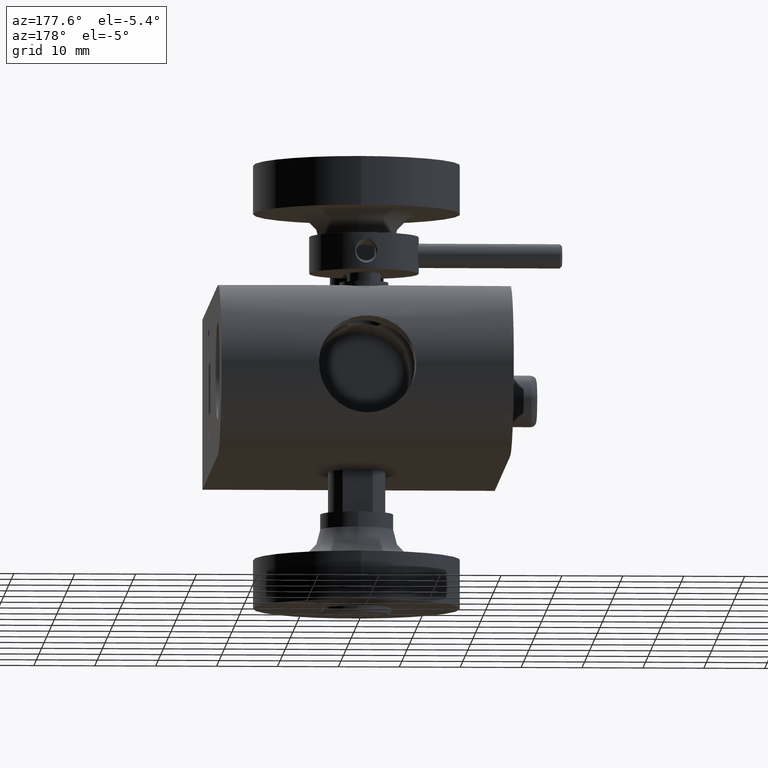
[diagram: clean part render]
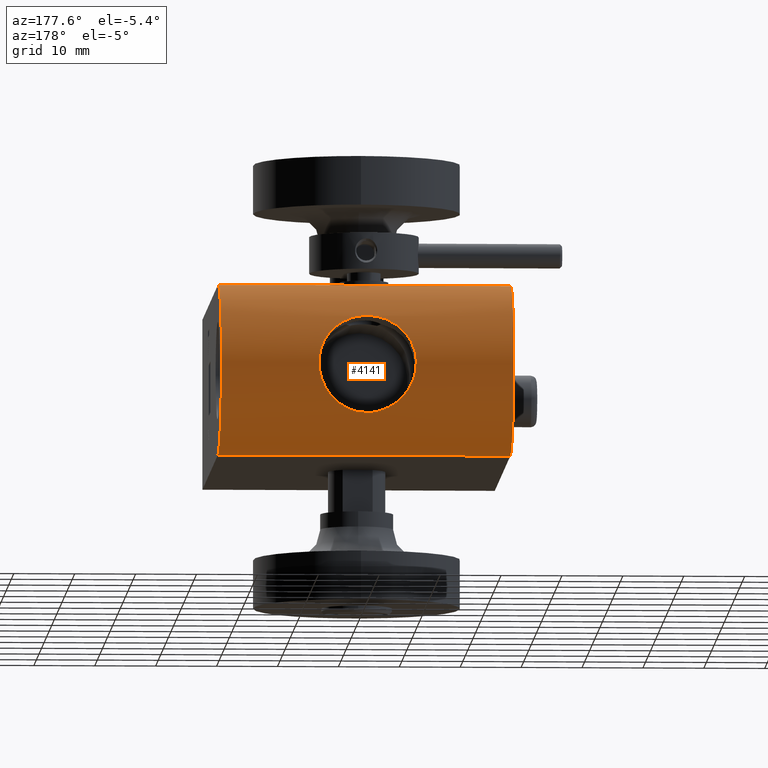
[diagram: same view with one face highlighted and labeled with its STEP entity id]
A machine part, auxiliary view. The second image highlights one B-rep face of the part: STEP entity #4141.
In plain terms, the highlighted cylindrical surface (partial cylindrical patch) has radius 14 mm, axis along (-1, 0, 0).
Its self-contained STEP definition (entity closure, byte-faithful):
#9 = CARTESIAN_POINT ( 'NONE',  ( -1.315228994278563768, 63.13531062139124117, 13.78656092639999109 ) ) ;
#59 = FACE_OUTER_BOUND ( 'NONE', #693, .T. ) ;
#79 = CARTESIAN_POINT ( 'NONE',  ( -2.638759947029245989, 72.47897627757603800, 7.570610446144321770 ) ) ;
#92 = CARTESIAN_POINT ( 'NONE',  ( -3.190061943320558147, 62.41922032144078969, 13.89467053544480990 ) ) ;
#107 = DIRECTION ( 'NONE',  ( 0.000000000000000000, 0.000000000000000000, 1.000000000000000000 ) ) ;
#138 = CARTESIAN_POINT ( 'NONE',  ( 24.00000000000000000, 60.70000000000000284, 13.99999999999999822 ) ) ;
#205 = CARTESIAN_POINT ( 'NONE',  ( 3.475238859139290870, 61.98806669925669155, 13.94138993986110542 ) ) ;
#210 = VERTEX_POINT ( 'NONE', #2813 ) ;
#265 = CARTESIAN_POINT ( 'NONE',  ( 1.375813530567649767, 72.26834024371287057, -7.885290432641760994 ) ) ;
#291 = CARTESIAN_POINT ( 'NONE',  ( -7.562777677641387086, 74.45375558165503094, -2.660295839653317618 ) ) ;
#339 = CARTESIAN_POINT ( 'NONE',  ( -5.306336268282032087, 73.35112403287396887, 6.009018835462801356 ) ) ;
#361 = EDGE_LOOP ( 'NONE', ( #2661 ) ) ;
#362 = DIRECTION ( 'NONE',  ( -1.000000000000000000, 0.000000000000000000, 0.000000000000000000 ) ) ;
#367 = CARTESIAN_POINT ( 'NONE',  ( -2.579095086834629846, 72.46576653865754736, -7.590945448088208813 ) ) ;
#387 = CARTESIAN_POINT ( 'NONE',  ( 3.551925738961246637, 72.72368893723927386, 7.172935414953692579 ) ) ;
#433 = VERTEX_POINT ( 'NONE', #652 ) ;
#438 = CARTESIAN_POINT ( 'NONE',  ( 2.090216680029844731, 72.36614579887428533, 7.740608111071021646 ) ) ;
#464 = CARTESIAN_POINT ( 'NONE',  ( 7.926935223221118321, 74.65835791080426986, 1.111916745920430660 ) ) ;
#500 = ORIENTED_EDGE ( 'NONE', *, *, #1523, .T. ) ;
#514 = CARTESIAN_POINT ( 'NONE',  ( 3.774065615057194290, 61.36889053274513373, 13.98748661467156928 ) ) ;
#519 = DIRECTION ( 'NONE',  ( -1.000000000000000000, 0.000000000000000000, 0.000000000000000000 ) ) ;
#533 = CARTESIAN_POINT ( 'NONE',  ( 24.00000000000000000, 60.70000000000000284, -14.00000000000000178 ) ) ;
#568 = CARTESIAN_POINT ( 'NONE',  ( -1.315228994278563768, 63.13531062139124117, 13.78656092639999109 ) ) ;
#588 = VERTEX_POINT ( 'NONE', #9 ) ;
#638 = LINE ( 'NONE', #2224, #3439 ) ;
#649 = CARTESIAN_POINT ( 'NONE',  ( -3.542229549773953323, 72.72082532302275126, -7.177726282944028036 ) ) ;
#652 = CARTESIAN_POINT ( 'NONE',  ( 3.938273733503041996, 60.70000000000000284, 13.99999999999999822 ) ) ;
#664 = EDGE_CURVE ( 'NONE', #210, #3551, #4093, .T. ) ;
#693 = EDGE_LOOP ( 'NONE', ( #1456, #4489, #3648, #5033, #3567, #500, #1077, #4438, #3185, #2870 ) ) ;
#706 = CARTESIAN_POINT ( 'NONE',  ( -5.251234183627897067, 73.33100336079252202, -6.040734319447999212 ) ) ;
#732 = CARTESIAN_POINT ( 'NONE',  ( 4.285616307323049767, 72.96082456090861967, -6.760082533082305112 ) ) ;
#740 = CARTESIAN_POINT ( 'NONE',  ( -1.430892739030114935, 63.73531069248475234, 13.66700000000321147 ) ) ;
#755 = CARTESIAN_POINT ( 'NONE',  ( -4.853052937495022867, 73.17072204257551959, -6.365045856498598553 ) ) ;
#781 = CARTESIAN_POINT ( 'NONE',  ( -2.139293463597402578, 72.37529982436920761, 7.726845560265292789 ) ) ;
#820 = CARTESIAN_POINT ( 'NONE',  ( -3.290438723831640377, 62.28091319061947218, 13.91122088644786281 ) ) ;
#830 = CARTESIAN_POINT ( 'NONE',  ( 4.008775927856346399, 72.86647868712039156, 6.927979105224827627 ) ) ;
#837 = CARTESIAN_POINT ( 'NONE',  ( 1.315228994278492713, 63.13531062139129801, 13.78656092639998043 ) ) ;
#866 = VERTEX_POINT ( 'NONE', #1420 ) ;
#868 = CARTESIAN_POINT ( 'NONE',  ( -3.473997165026830203, 61.99019990850624851, 13.94118851690588201 ) ) ;
#876 = CARTESIAN_POINT ( 'NONE',  ( 4.655092302246336189, 73.09477438729589949, 6.511196563398756076 ) ) ;
#912 = VECTOR ( 'NONE', #2866, 1000.000000000000000 ) ;
#936 = AXIS2_PLACEMENT_3D ( 'NONE', #4945, #1410, #2609 ) ;
#957 = B_SPLINE_CURVE_WITH_KNOTS ( 'NONE', 3,
 ( #1754, #4879, #4059, #2882, #2567, #2172, #3749, #3695, #4107, #205, #1779, #514, #3312, #3362 ),
 .UNSPECIFIED., .F., .F.,
 ( 4, 2, 2, 2, 2, 2, 4 ),
 ( 3.099625970156314540E-14, 0.001028376005875155080, 0.001542564008797234817, 0.002056752011719314988, 0.002570940014641411205, 0.003085128017563506554, 0.004113504023407698121 ),
 .UNSPECIFIED. ) ;
#1034 = CARTESIAN_POINT ( 'NONE',  ( -7.884740563987262973, 74.63438561269444449, -1.379020319179069531 ) ) ;
#1064 = CARTESIAN_POINT ( 'NONE',  ( -5.443780475400558316, 73.41251200910313912, -5.867789466993320602 ) ) ;
#1077 = ORIENTED_EDGE ( 'NONE', *, *, #2223, .T. ) ;
#1091 = CARTESIAN_POINT ( 'NONE',  ( -7.998460582776938388, 74.69912034115733945, -0.3094999171637923818 ) ) ;
#1121 = CARTESIAN_POINT ( 'NONE',  ( 3.377020555461148099, 72.67290650555003140, -7.256997650767647023 ) ) ;
#1147 = CARTESIAN_POINT ( 'NONE',  ( -7.588867561526579486, 74.46815477823008678, 2.585640454884033268 ) ) ;
#1172 = CARTESIAN_POINT ( 'NONE',  ( 24.00000000000000000, 60.70000000000000284, -8.673617379884041389E-16 ) ) ;
#1187 = LINE ( 'NONE', #4336, #2802 ) ;
#1192 = CARTESIAN_POINT ( 'NONE',  ( 7.589403814143906857, 74.46845799386308329, -2.583786651014191804 ) ) ;
#1214 = CARTESIAN_POINT ( 'NONE',  ( 7.256979664534068952, 74.28883000211722276, 3.377073778761595868 ) ) ;
#1230 = CARTESIAN_POINT ( 'NONE',  ( -3.877390386153397372, 61.04253612524981065, 14.00000000000000000 ) ) ;
#1363 = VERTEX_POINT ( 'NONE', #4492 ) ;
#1381 = VERTEX_POINT ( 'NONE', #533 ) ;
#1410 = DIRECTION ( 'NONE',  ( 1.000000000000000000, -0.000000000000000000, -0.000000000000000000 ) ) ;
#1420 = CARTESIAN_POINT ( 'NONE',  ( 1.315228994278492713, 63.13531062139129801, 13.78656092639998043 ) ) ;
#1456 = ORIENTED_EDGE ( 'NONE', *, *, #3171, .T. ) ;
#1476 = CARTESIAN_POINT ( 'NONE',  ( 0.8880275837515027026, 63.28967311704150944, 13.75847423226732857 ) ) ;
#1478 = CARTESIAN_POINT ( 'NONE',  ( -4.066034618073643969, 72.88100596640767037, 6.908647529261774167 ) ) ;
#1505 = CARTESIAN_POINT ( 'NONE',  ( -7.983725319818717026, 74.69068713353377120, -0.5765394909363430465 ) ) ;
#1523 = EDGE_CURVE ( 'NONE', #433, #1881, #638, .T. ) ;
#1527 = CARTESIAN_POINT ( 'NONE',  ( -0.2258129323519795506, 63.39995269689270430, 13.73718513513079564 ) ) ;
#1592 = CARTESIAN_POINT ( 'NONE',  ( -2.608268263077611504, 63.05174226754778033, 13.80254076801911189 ) ) ;
#1625 = CARTESIAN_POINT ( 'NONE',  ( 7.983802531734496277, 74.69073108878515654, 0.5758107477911302841 ) ) ;
#1651 = CARTESIAN_POINT ( 'NONE',  ( 3.314891321004725278, 72.65551378912786618, 7.285576744993693232 ) ) ;
#1695 = B_SPLINE_CURVE_WITH_KNOTS ( 'NONE', 3,
 ( #3500, #1920, #1478, #3474, #339, #4676, #3810, #2234, #4626, #3014, #2622, #1147, #4218, #3121, #3908, #4597, #2334, #1091, #1505, #2682, #1034, #4245, #291, #2731, #4190, #4291, #1864, #1064, #706, #755, #3446, #2260, #3097, #649, #3420, #367, #2285, #3394, #4960, #3838, #2655, #3860, #4573, #265, #4653, #1839, #1121, #4984, #2709, #732, #3072, #2312, #3885, #4774, #2754, #4340, #1192, #3981, #2045, #1947, #5086, #1625, #464, #3622, #2806, #4366, #1214, #2410, #4747, #3523, #4036, #4800, #2856, #3143, #4724, #876, #3960, #830, #387, #1651, #2777, #438, #4009, #3190, #4314, #3215, #2019, #1974, #781, #79, #3238 ),
 .UNSPECIFIED., .T., .F.,
 ( 4, 2, 2, 2, 2, 2, 2, 2, 2, 2, 2, 2, 2, 2, 2, 2, 2, 2, 2, 2, 1, 2, 2, 2, 2, 2, 2, 2, 2, 2, 2, 2, 2, 2, 2, 2, 2, 2, 2, 2, 2, 2, 2, 2, 2, 4 ),
 ( 0.000000000000000000, 0.001623902086764540415, 0.003247804173529080830, 0.004871706260293621679, 0.005683657303675884731, 0.006495608347058148650, 0.008119510433822665213, 0.008931461477204928265, 0.009743412520587187847, 0.01055536356396945090, 0.01136731460735171222, 0.01299121669411624005, 0.01461511878088077136, 0.01623902086764530267, 0.01705097191102756746, 0.01786292295440983224, 0.01867487399779209703, 0.01948682504117435835, 0.02111072712793888445, 0.02192267817132114230, 0.02273462921470340015, 0.02354658025808565799, 0.02435853130146791584, 0.02598243338823243154, 0.02679438443161469632, 0.02760633547499695417, 0.02923023756176146293, 0.03085413964852596821, 0.03247804173529047350, 0.03410194382205498226, 0.03572584590881948408, 0.03653779695220173845, 0.03734974799558398589, 0.03897365008234849465, 0.03978560112573074209, 0.04059755216911299647, 0.04222145425587749135, 0.04303340529925973879, 0.04384535634264199316, 0.04465730738602424754, 0.04546925842940650192, 0.04709316051617100374, 0.04790511155955324424, 0.04871706260293549168, 0.05034096468970000043, 0.05196486677646449531 ),
 .UNSPECIFIED. ) ;
#1754 = CARTESIAN_POINT ( 'NONE',  ( 1.430892739027969096, 63.73531069247319181, 13.66700000000577653 ) ) ;
#1779 = CARTESIAN_POINT ( 'NONE',  ( 3.558188715824345039, 61.83538856973923714, 13.95475517093756324 ) ) ;
#1830 = B_SPLINE_CURVE_WITH_KNOTS ( 'NONE', 3,
 ( #740, #2320, #3890, #568 ),
 .UNSPECIFIED., .F., .F.,
 ( 4, 4 ),
 ( 0.000000000000000000, 1.000000000000000000 ),
 .UNSPECIFIED. ) ;
#1836 = CARTESIAN_POINT ( 'NONE',  ( -1.106284854236671222, 63.22296043487152417, 13.77107812957552646 ) ) ;
#1839 = CARTESIAN_POINT ( 'NONE',  ( 2.655859636088497400, 72.48297415091538198, -7.564359889271056403 ) ) ;
#1864 = CARTESIAN_POINT ( 'NONE',  ( -5.990462647391812112, 73.65293424667751765, -5.327021085319989524 ) ) ;
#1880 = AXIS2_PLACEMENT_3D ( 'NONE', #1172, #4752, #4371 ) ;
#1881 = VERTEX_POINT ( 'NONE', #2531 ) ;
#1899 = B_SPLINE_CURVE_WITH_KNOTS ( 'NONE', 3,
 ( #4289, #1836, #3117, #4651, #1527, #2358, #2257, #1476, #5036, #2679 ),
 .UNSPECIFIED., .F., .F.,
 ( 4, 2, 2, 2, 4 ),
 ( 1.613112122175348001E-16, 0.0006717625157956355966, 0.001343525031591109864, 0.002015287547386584131, 0.002687050063182058399 ),
 .UNSPECIFIED. ) ;
#1920 = CARTESIAN_POINT ( 'NONE',  ( -3.608174663070064625, 72.73329350131851356, 7.159488262864503128 ) ) ;
#1947 = CARTESIAN_POINT ( 'NONE',  ( 8.002671289736223770, 74.70152643703704598, -0.4917889848062726998 ) ) ;
#1974 = CARTESIAN_POINT ( 'NONE',  ( -1.101601312824981749, 72.23037618284600114, 7.941485590439881115 ) ) ;
#1986 = CARTESIAN_POINT ( 'NONE',  ( -3.938273733503041996, 60.70000000000000284, 13.99999999999999822 ) ) ;
#2000 = FACE_BOUND ( 'NONE', #361, .T. ) ;
#2019 = CARTESIAN_POINT ( 'NONE',  ( -0.5594561693302273486, 72.19036731368630910, 7.998216269754842678 ) ) ;
#2045 = CARTESIAN_POINT ( 'NONE',  ( 7.952537201945407475, 74.67266717179856528, -1.023078944456322192 ) ) ;
#2172 = CARTESIAN_POINT ( 'NONE',  ( 2.856697422506222939, 62.80512735573458372, 13.84133409189644404 ) ) ;
#2223 = EDGE_CURVE ( 'NONE', #1881, #1381, #3786, .T. ) ;
#2224 = CARTESIAN_POINT ( 'NONE',  ( 24.00000000000000000, 60.70000000000000284, 13.99999999999999822 ) ) ;
#2234 = CARTESIAN_POINT ( 'NONE',  ( -6.791060688220772690, 74.04552631673473684, 4.236513054425503633 ) ) ;
#2257 = CARTESIAN_POINT ( 'NONE',  ( 0.4471482411233883014, 63.37795806027095580, 13.74156325461268224 ) ) ;
#2260 = CARTESIAN_POINT ( 'NONE',  ( -4.220022080635004613, 72.93801185801103770, -6.801261873073445763 ) ) ;
#2285 = CARTESIAN_POINT ( 'NONE',  ( -2.076492554365377607, 72.36370821841575207, -7.744261258931623537 ) ) ;
#2298 = CARTESIAN_POINT ( 'NONE',  ( -3.123467305049652865, 72.60613488944728999, 7.365049354504412449 ) ) ;
#2312 = CARTESIAN_POINT ( 'NONE',  ( 5.312326430306415936, 73.35364042567996989, -6.003765434780529375 ) ) ;
#2317 = EDGE_CURVE ( 'NONE', #3816, #588, #1830, .T. ) ;
#2320 = CARTESIAN_POINT ( 'NONE',  ( -1.392638112957305996, 63.52850843747408049, 13.71292881363211436 ) ) ;
#2334 = CARTESIAN_POINT ( 'NONE',  ( -8.001311057280869221, 74.70074916807429588, 0.2240161994046352689 ) ) ;
#2342 = CARTESIAN_POINT ( 'NONE',  ( 1.354083531327531897, 63.32837734183105738, 13.75245688570163693 ) ) ;
#2358 = CARTESIAN_POINT ( 'NONE',  ( 0.2243862204457045539, 63.40004715343765440, 13.73716656998560026 ) ) ;
#2372 = CARTESIAN_POINT ( 'NONE',  ( -2.054280375899091293, 63.44907615701818315, 13.72892580024796949 ) ) ;
#2410 = CARTESIAN_POINT ( 'NONE',  ( 7.141721105367674127, 74.22748026209104921, 3.614412518703048693 ) ) ;
#2531 = CARTESIAN_POINT ( 'NONE',  ( 24.00000000000000000, 60.70000000000000284, 13.99999999999999822 ) ) ;
#2567 = CARTESIAN_POINT ( 'NONE',  ( 2.605906126104562848, 63.03952511218039234, 13.80364853496474709 ) ) ;
#2573 = EDGE_CURVE ( 'NONE', #588, #866, #1899, .T. ) ;
#2609 = DIRECTION ( 'NONE',  ( 0.000000000000000000, 0.000000000000000000, 1.000000000000000000 ) ) ;
#2622 = CARTESIAN_POINT ( 'NONE',  ( -7.286101854547601953, 74.30441376971349143, 3.313884672440917445 ) ) ;
#2636 = CARTESIAN_POINT ( 'NONE',  ( -3.938273733503041996, 60.70000000000000284, 13.99999999999999822 ) ) ;
#2655 = CARTESIAN_POINT ( 'NONE',  ( 0.04203870671740064097, 72.17992705719811397, -8.013160800322177479 ) ) ;
#2661 = ORIENTED_EDGE ( 'NONE', *, *, #4864, .T. ) ;
#2679 = CARTESIAN_POINT ( 'NONE',  ( 1.315228994278492713, 63.13531062139129801, 13.78656092639998043 ) ) ;
#2682 = CARTESIAN_POINT ( 'NONE',  ( -7.927011877440143905, 74.65840154857245636, -1.111193260349654821 ) ) ;
#2709 = CARTESIAN_POINT ( 'NONE',  ( 4.066880057105567658, 72.88578003306656683, -6.894007386940923965 ) ) ;
#2731 = CARTESIAN_POINT ( 'NONE',  ( -7.152700295331019475, 74.23260166831582296, -3.621002435939399522 ) ) ;
#2754 = CARTESIAN_POINT ( 'NONE',  ( 6.936897193737720180, 74.11860684491544760, -4.018126818282957480 ) ) ;
#2769 = CARTESIAN_POINT ( 'NONE',  ( -1.430892739030114935, 63.73531069248475234, 13.66700000000321147 ) ) ;
#2777 = CARTESIAN_POINT ( 'NONE',  ( 2.591935575924771751, 72.46865973667159722, 7.586461749677295252 ) ) ;
#2802 = VECTOR ( 'NONE', #362, 1000.000000000000000 ) ;
#2806 = CARTESIAN_POINT ( 'NONE',  ( 7.722218931813035425, 74.54285479360179067, 2.156014478788746302 ) ) ;
#2813 = CARTESIAN_POINT ( 'NONE',  ( -24.00000000000000000, 60.70000000000000284, 13.99999999999999822 ) ) ;
#2847 = CARTESIAN_POINT ( 'NONE',  ( -2.863603195833229087, 62.81358586156355983, 13.84207737352492451 ) ) ;
#2856 = CARTESIAN_POINT ( 'NONE',  ( 5.449189950633100743, 73.41482935195999460, 5.862779277742180994 ) ) ;
#2860 = CARTESIAN_POINT ( 'NONE',  ( 24.00000000000000000, 60.70000000000000284, -8.673617379884041389E-16 ) ) ;
#2866 = DIRECTION ( 'NONE',  ( 1.000000000000000000, -0.000000000000000000, -0.000000000000000000 ) ) ;
#2870 = ORIENTED_EDGE ( 'NONE', *, *, #664, .T. ) ;
#2882 = CARTESIAN_POINT ( 'NONE',  ( 2.471716528602248442, 63.14958392570351009, 13.78440539318980385 ) ) ;
#2902 = B_SPLINE_CURVE_WITH_KNOTS ( 'NONE', 3,
 ( #1986, #1230, #3923, #4715, #868, #820, #92, #2847, #1592, #2372, #4738, #2769 ),
 .UNSPECIFIED., .F., .F.,
 ( 4, 2, 2, 2, 2, 4 ),
 ( 7.410741937918042371E-18, 0.001028477229681752864, 0.001542715844522635042, 0.002056954459363517437, 0.003085431689045280926, 0.004113908918727045283 ),
 .UNSPECIFIED. ) ;
#3014 = CARTESIAN_POINT ( 'NONE',  ( -7.172570804245676612, 74.24380414998239530, 3.552855901141562356 ) ) ;
#3072 = CARTESIAN_POINT ( 'NONE',  ( 4.919284269175206781, 73.19178149184885740, -6.329418158863891364 ) ) ;
#3097 = CARTESIAN_POINT ( 'NONE',  ( -3.999296109946246958, 72.86335564876587512, -6.933453353209068304 ) ) ;
#3117 = CARTESIAN_POINT ( 'NONE',  ( -0.8920107156477615762, 63.28853124736910729, 13.75868958418973520 ) ) ;
#3121 = CARTESIAN_POINT ( 'NONE',  ( -7.899823130257694004, 74.64293195337099007, 1.290303778709211535 ) ) ;
#3143 = CARTESIAN_POINT ( 'NONE',  ( 5.257216424070692895, 73.33350243486357556, 6.035495702546334051 ) ) ;
#3171 = EDGE_CURVE ( 'NONE', #3551, #3816, #2902, .T. ) ;
#3185 = ORIENTED_EDGE ( 'NONE', *, *, #3548, .T. ) ;
#3190 = CARTESIAN_POINT ( 'NONE',  ( 1.037383647615675031, 72.23282467231831561, 7.936934781155541074 ) ) ;
#3215 = CARTESIAN_POINT ( 'NONE',  ( 0.2405539939842604169, 72.18854880624739678, 8.000827922894687916 ) ) ;
#3238 = CARTESIAN_POINT ( 'NONE',  ( -3.123467305049649312, 72.60613488944727578, 7.365049354504415113 ) ) ;
#3312 = CARTESIAN_POINT ( 'NONE',  ( 3.877390153014715235, 61.04253743691256062, 14.00000000000000000 ) ) ;
#3362 = CARTESIAN_POINT ( 'NONE',  ( 3.938273733503041996, 60.70000000000000284, 13.99999999999999822 ) ) ;
#3381 = VERTEX_POINT ( 'NONE', #2298 ) ;
#3394 = CARTESIAN_POINT ( 'NONE',  ( -1.290377252158667165, 72.25844455244261155, -7.899764394641300314 ) ) ;
#3420 = CARTESIAN_POINT ( 'NONE',  ( -3.304690953005529508, 72.65267187655926762, -7.290237566144178949 ) ) ;
#3439 = VECTOR ( 'NONE', #4640, 1000.000000000000000 ) ;
#3446 = CARTESIAN_POINT ( 'NONE',  ( -4.646901741386629148, 73.09169252644178982, -6.517058664233996268 ) ) ;
#3474 = CARTESIAN_POINT ( 'NONE',  ( -4.913413522862875915, 73.18943158374067082, 6.334067867673692120 ) ) ;
#3500 = CARTESIAN_POINT ( 'NONE',  ( -3.123467305049649312, 72.60613488944727578, 7.365049354504415113 ) ) ;
#3523 = CARTESIAN_POINT ( 'NONE',  ( 6.755709477524380446, 74.02756238433356373, 4.292582658599331857 ) ) ;
#3528 = B_SPLINE_CURVE_WITH_KNOTS ( 'NONE', 3,
 ( #837, #2342, #3939, #4323 ),
 .UNSPECIFIED., .F., .F.,
 ( 4, 4 ),
 ( 0.000000000000000000, 1.000000000000000000 ),
 .UNSPECIFIED. ) ;
#3548 = EDGE_CURVE ( 'NONE', #3682, #210, #4978, .T. ) ;
#3551 = VERTEX_POINT ( 'NONE', #2636 ) ;
#3567 = ORIENTED_EDGE ( 'NONE', *, *, #4992, .T. ) ;
#3607 = EDGE_CURVE ( 'NONE', #866, #1363, #3528, .T. ) ;
#3622 = CARTESIAN_POINT ( 'NONE',  ( 7.884951046761305982, 74.63450551369852803, 1.377611304424203098 ) ) ;
#3648 = ORIENTED_EDGE ( 'NONE', *, *, #2573, .T. ) ;
#3682 = VERTEX_POINT ( 'NONE', #4403 ) ;
#3695 = CARTESIAN_POINT ( 'NONE',  ( 3.190973314517611570, 62.41800786203600637, 13.89481984607082943 ) ) ;
#3749 = CARTESIAN_POINT ( 'NONE',  ( 2.973628049394422490, 62.68078513474803515, 13.85980013632023500 ) ) ;
#3786 = CIRCLE ( 'NONE', #4441, 14.00000000000000000 ) ;
#3810 = CARTESIAN_POINT ( 'NONE',  ( -6.360490292442182003, 73.82989361565805098, 4.879585614108019165 ) ) ;
#3816 = VERTEX_POINT ( 'NONE', #4092 ) ;
#3838 = CARTESIAN_POINT ( 'NONE',  ( -0.4904428956587346677, 72.19652254151343129, -7.989425726645326797 ) ) ;
#3860 = CARTESIAN_POINT ( 'NONE',  ( 0.5750785350010106933, 72.20043420052576266, -7.983807918148073668 ) ) ;
#3885 = CARTESIAN_POINT ( 'NONE',  ( 6.039274355720918308, 73.67561708220227956, -5.271923439725697769 ) ) ;
#3890 = CARTESIAN_POINT ( 'NONE',  ( -1.354083531383539318, 63.32837734213561731, 13.75245688564783997 ) ) ;
#3908 = CARTESIAN_POINT ( 'NONE',  ( -7.938842189070521194, 74.66512739822337608, 1.022879953277020082 ) ) ;
#3923 = CARTESIAN_POINT ( 'NONE',  ( -3.773975782746771035, 61.36938275796240561, 13.98748174965503566 ) ) ;
#3939 = CARTESIAN_POINT ( 'NONE',  ( 1.392638112899915681, 63.52850843716434071, 13.71292881370053429 ) ) ;
#3960 = CARTESIAN_POINT ( 'NONE',  ( 4.229181911986172437, 72.94118161838163417, 6.795556296947133035 ) ) ;
#3981 = CARTESIAN_POINT ( 'NONE',  ( 7.743899342744410497, 74.55498310991717403, -2.078836560280358015 ) ) ;
#4009 = CARTESIAN_POINT ( 'NONE',  ( 1.303519300007815573, 72.25991568192750947, 7.897616245372431898 ) ) ;
#4036 = CARTESIAN_POINT ( 'NONE',  ( 6.322137577213998938, 73.81131792763727617, 4.928902733597049668 ) ) ;
#4059 = CARTESIAN_POINT ( 'NONE',  ( 2.054842049439345342, 63.44886505435030699, 13.72898083342072972 ) ) ;
#4092 = CARTESIAN_POINT ( 'NONE',  ( -1.430892739030114935, 63.73531069248475234, 13.66700000000321147 ) ) ;
#4093 = LINE ( 'NONE', #138, #912 ) ;
#4107 = CARTESIAN_POINT ( 'NONE',  ( 3.291388456666758167, 62.27957372245031564, 13.91137721910878966 ) ) ;
#4141 = ADVANCED_FACE ( 'NONE', ( #59, #2000 ), #5090, .T. ) ;
#4190 = CARTESIAN_POINT ( 'NONE',  ( -6.897717898699103678, 74.09832952340464374, -4.084904077919071952 ) ) ;
#4218 = CARTESIAN_POINT ( 'NONE',  ( -7.743389522552854842, 74.55469830656365104, 2.080450918633010016 ) ) ;
#4245 = CARTESIAN_POINT ( 'NONE',  ( -7.721112819524413418, 74.54223456452550067, -2.160495322039688748 ) ) ;
#4289 = CARTESIAN_POINT ( 'NONE',  ( -1.315228994278563768, 63.13531062139124117, 13.78656092639999109 ) ) ;
#4291 = CARTESIAN_POINT ( 'NONE',  ( -6.317346686663811717, 73.80898893764138791, -4.935188383064176065 ) ) ;
#4314 = CARTESIAN_POINT ( 'NONE',  ( 0.5065861681698112795, 72.19723921799814548, 7.988395896979312738 ) ) ;
#4323 = CARTESIAN_POINT ( 'NONE',  ( 1.430892739027969096, 63.73531069247319181, 13.66700000000577653 ) ) ;
#4336 = CARTESIAN_POINT ( 'NONE',  ( 24.00000000000000000, 60.70000000000000284, -14.00000000000000178 ) ) ;
#4340 = CARTESIAN_POINT ( 'NONE',  ( 7.187170291325491789, 74.25089672572048016, -3.552405792641021520 ) ) ;
#4366 = CARTESIAN_POINT ( 'NONE',  ( 7.564551410831633405, 74.45473103870212128, 2.655388217855466415 ) ) ;
#4371 = DIRECTION ( 'NONE',  ( 0.000000000000000000, 0.000000000000000000, 1.000000000000000000 ) ) ;
#4390 = EDGE_CURVE ( 'NONE', #1381, #3682, #1187, .T. ) ;
#4403 = CARTESIAN_POINT ( 'NONE',  ( -24.00000000000000000, 60.70000000000000284, -14.00000000000000178 ) ) ;
#4438 = ORIENTED_EDGE ( 'NONE', *, *, #4390, .T. ) ;
#4441 = AXIS2_PLACEMENT_3D ( 'NONE', #2860, #519, #107 ) ;
#4489 = ORIENTED_EDGE ( 'NONE', *, *, #2317, .T. ) ;
#4492 = CARTESIAN_POINT ( 'NONE',  ( 1.430892739027969096, 63.73531069247319181, 13.66700000000577653 ) ) ;
#4573 = CARTESIAN_POINT ( 'NONE',  ( 1.108400818560562939, 72.23940309781183089, -7.927379883714233522 ) ) ;
#4597 = CARTESIAN_POINT ( 'NONE',  ( -7.989425235278168280, 74.69394453096563780, 0.4904927233735437153 ) ) ;
#4626 = CARTESIAN_POINT ( 'NONE',  ( -6.924905007268165491, 74.11428970429857088, 4.014255551968025415 ) ) ;
#4640 = DIRECTION ( 'NONE',  ( 1.000000000000000000, -0.000000000000000000, -0.000000000000000000 ) ) ;
#4651 = CARTESIAN_POINT ( 'NONE',  ( -0.4531043872406271267, 63.37710190785185205, 13.74173054850345821 ) ) ;
#4653 = CARTESIAN_POINT ( 'NONE',  ( 2.156462950105440424, 72.37839308076375744, -7.722197864393367972 ) ) ;
#4676 = CARTESIAN_POINT ( 'NONE',  ( -6.033371668727138371, 73.67286816382852521, 5.278630339778747960 ) ) ;
#4715 = CARTESIAN_POINT ( 'NONE',  ( -3.557313343528768712, 61.83713019750724982, 13.95461804053820920 ) ) ;
#4724 = CARTESIAN_POINT ( 'NONE',  ( 4.860593672073989069, 73.17366947161862356, 6.359257980296772139 ) ) ;
#4738 = CARTESIAN_POINT ( 'NONE',  ( -1.754675054220476538, 63.61127877065475644, 13.69454630998648348 ) ) ;
#4747 = CARTESIAN_POINT ( 'NONE',  ( 6.890871981322899131, 74.09674059453976724, 4.072350861508676090 ) ) ;
#4752 = DIRECTION ( 'NONE',  ( -1.000000000000000000, 0.000000000000000000, 0.000000000000000000 ) ) ;
#4774 = CARTESIAN_POINT ( 'NONE',  ( 6.363662582613998531, 73.83143817132337006, -4.875416324677265045 ) ) ;
#4800 = CARTESIAN_POINT ( 'NONE',  ( 5.995988702905141743, 73.65549064493110620, 5.320857767789854087 ) ) ;
#4864 = EDGE_CURVE ( 'NONE', #3381, #3381, #1695, .T. ) ;
#4879 = CARTESIAN_POINT ( 'NONE',  ( 1.754647795986439052, 63.61128921251267343, 13.69454399094297692 ) ) ;
#4945 = CARTESIAN_POINT ( 'NONE',  ( -24.00000000000000000, 60.70000000000000284, -8.673617379884041389E-16 ) ) ;
#4960 = CARTESIAN_POINT ( 'NONE',  ( -1.022644278175131705, 72.23149155351639195, -7.938869392462351904 ) ) ;
#4978 = CIRCLE ( 'NONE', #936, 14.00000000000000000 ) ;
#4984 = CARTESIAN_POINT ( 'NONE',  ( 3.613235892703817953, 72.74197638395474996, -7.142224977817202891 ) ) ;
#4992 = EDGE_CURVE ( 'NONE', #1363, #433, #957, .T. ) ;
#5033 = ORIENTED_EDGE ( 'NONE', *, *, #3607, .T. ) ;
#5036 = CARTESIAN_POINT ( 'NONE',  ( 1.106271489614915726, 63.22296604118623975, 13.77107713925474997 ) ) ;
#5086 = CARTESIAN_POINT ( 'NONE',  ( 7.998501436013587984, 74.69914368526806925, 0.3084247434542107813 ) ) ;
#5090 = CYLINDRICAL_SURFACE ( 'NONE', #1880, 14.00000000000000000 ) ;